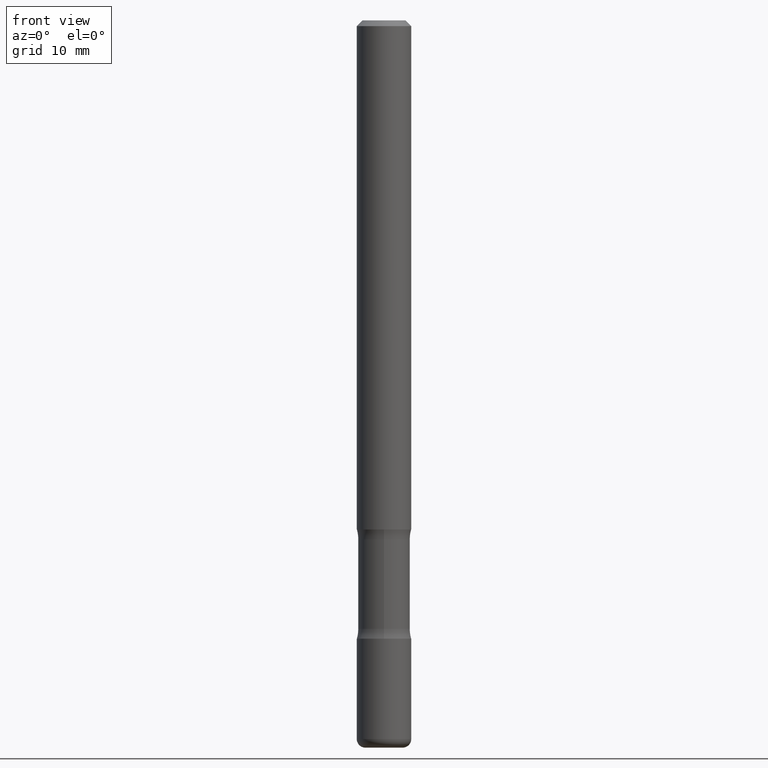
[diagram: clean part render]
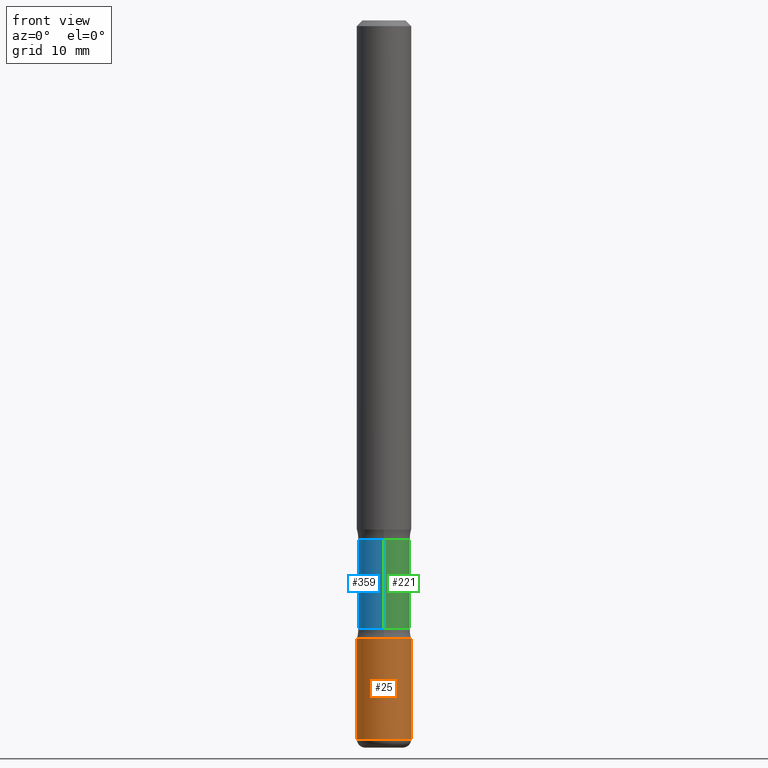
[diagram: same view with three faces highlighted in distinct colors, each labeled with its STEP entity id]
A machine part, front view with three faces highlighted in distinct colors.
Their STEP definitions:

[orange] entity #25 — the highlighted cylindrical surface (edge-blend (fillet) strip) has radius 2.3813 mm, axis along (-0, 0, 1).
#25 = ADVANCED_FACE ( 'NONE', ( #488 ), #408, .T. ) ;
#27 = VERTEX_POINT ( 'NONE', #139 ) ;
#33 = CARTESIAN_POINT ( 'NONE',  ( 0.09374999999999994449, -9.278611657975658288E-15, -2.470000000000000639 ) ) ;
#44 = VECTOR ( 'NONE', #559, 39.37007874015748143 ) ;
#66 = CARTESIAN_POINT ( 'NONE',  ( -0.09375000000000005551, 6.661338147750943187E-16, -4.611501647113976798E-30 ) ) ;
#82 = LINE ( 'NONE', #439, #44 ) ;
#102 = ORIENTED_EDGE ( 'NONE', *, *, #148, .T. ) ;
#124 = CARTESIAN_POINT ( 'NONE',  ( -0.09374999999999994449, -7.957825092167479227E-15, -2.470000000000000639 ) ) ;
#129 = CIRCLE ( 'NONE', #468, 0.09375000000000002776 ) ;
#139 = CARTESIAN_POINT ( 'NONE',  ( 0.09375000000000002776, -8.074050596074771916E-15, -2.125000000000000000 ) ) ;
#148 = EDGE_CURVE ( 'NONE', #518, #368, #303, .T. ) ;
#208 = ORIENTED_EDGE ( 'NONE', *, *, #429, .F. ) ;
#270 = VERTEX_POINT ( 'NONE', #282 ) ;
#278 = EDGE_CURVE ( 'NONE', #270, #27, #129, .T. ) ;
#282 = CARTESIAN_POINT ( 'NONE',  ( -0.09375000000000002776, -7.355544561217034463E-15, -2.125000000000000000 ) ) ;
#300 = DIRECTION ( 'NONE',  ( -2.445468806185136597E-29, 3.491481338843145583E-15, 1.000000000000000000 ) ) ;
#303 = CIRCLE ( 'NONE', #355, 0.09375000000000009714 ) ;
#324 = DIRECTION ( 'NONE',  ( -2.445468806185136597E-29, 3.491481338843145583E-15, 1.000000000000000000 ) ) ;
#325 = ORIENTED_EDGE ( 'NONE', *, *, #472, .T. ) ;
#330 = ORIENTED_EDGE ( 'NONE', *, *, #278, .F. ) ;
#332 = DIRECTION ( 'NONE',  ( 1.000000000000000000, -6.982962677686270655E-15, 0.000000000000000000 ) ) ;
#347 = CARTESIAN_POINT ( 'NONE',  ( 0.000000000000000000, 0.000000000000000000, 0.000000000000000000 ) ) ;
#355 = AXIS2_PLACEMENT_3D ( 'NONE', #414, #324, #450 ) ;
#368 = VERTEX_POINT ( 'NONE', #33 ) ;
#391 = DIRECTION ( 'NONE',  ( -2.445468806185136877E-29, 3.491481338843145188E-15, 1.000000000000000000 ) ) ;
#408 = CYLINDRICAL_SURFACE ( 'NONE', #481, 0.09375000000000005551 ) ;
#414 = CARTESIAN_POINT ( 'NONE',  ( 6.040307951277289098E-29, -8.623958906942573151E-15, -2.470000000000000639 ) ) ;
#429 = EDGE_CURVE ( 'NONE', #518, #270, #463, .T. ) ;
#439 = CARTESIAN_POINT ( 'NONE',  ( 0.09375000000000005551, -6.546527510330878985E-16, 4.571415727308692608E-30 ) ) ;
#441 = DIRECTION ( 'NONE',  ( 1.000000000000000000, -6.982962677686266711E-15, 4.876176775795935793E-29 ) ) ;
#450 = DIRECTION ( 'NONE',  ( 1.000000000000000000, -6.982962677686265922E-15, 0.000000000000000000 ) ) ;
#463 = LINE ( 'NONE', #66, #469 ) ;
#468 = AXIS2_PLACEMENT_3D ( 'NONE', #553, #473, #332 ) ;
#469 = VECTOR ( 'NONE', #391, 39.37007874015748143 ) ;
#472 = EDGE_CURVE ( 'NONE', #368, #27, #82, .T. ) ;
#473 = DIRECTION ( 'NONE',  ( -2.445468806185136597E-29, 3.491481338843145583E-15, 1.000000000000000000 ) ) ;
#481 = AXIS2_PLACEMENT_3D ( 'NONE', #347, #300, #441 ) ;
#488 = FACE_OUTER_BOUND ( 'NONE', #489, .T. ) ;
#489 = EDGE_LOOP ( 'NONE', ( #208, #102, #325, #330 ) ) ;
#518 = VERTEX_POINT ( 'NONE', #124 ) ;
#553 = CARTESIAN_POINT ( 'NONE',  ( 5.196621213143415268E-29, -7.419397845041685201E-15, -2.125000000000000000 ) ) ;
#559 = DIRECTION ( 'NONE',  ( -2.445468806185136877E-29, 3.491481338843145188E-15, 1.000000000000000000 ) ) ;

[blue] entity #359 — the highlighted cylindrical surface (edge-blend (fillet) strip) has radius 2.2622 mm, axis along (0, -0, -1).
#3 = AXIS2_PLACEMENT_3D ( 'NONE', #190, #428, #503 ) ;
#19 = VERTEX_POINT ( 'NONE', #311 ) ;
#30 = DIRECTION ( 'NONE',  ( 6.982962677686265133E-15, 1.000000000000000000, -3.067338098149349877E-15 ) ) ;
#40 = CARTESIAN_POINT ( 'NONE',  ( -6.110131029264649859E-16, -0.08906250000000860700, -2.499999999999999556 ) ) ;
#41 = DIRECTION ( 'NONE',  ( 2.553476385947133355E-29, -3.336808337214295667E-15, -1.000000000000000000 ) ) ;
#51 = ORIENTED_EDGE ( 'NONE', *, *, #423, .T. ) ;
#84 = EDGE_LOOP ( 'NONE', ( #528, #539, #51, #233 ) ) ;
#115 = CARTESIAN_POINT ( 'NONE',  ( 6.219201134814940684E-16, 0.08906249999999125977, -2.500000000000000444 ) ) ;
#151 = CARTESIAN_POINT ( 'NONE',  ( -6.270923951087521301E-16, -0.08906250000000723310, -2.091089789977795377 ) ) ;
#166 = CIRCLE ( 'NONE', #344, 0.08906249999999993339 ) ;
#190 = CARTESIAN_POINT ( 'NONE',  ( 6.154174857873591467E-29, -8.670700971497045879E-15, -2.500000000000000000 ) ) ;
#233 = ORIENTED_EDGE ( 'NONE', *, *, #499, .F. ) ;
#252 = CARTESIAN_POINT ( 'NONE',  ( 6.219201134814759246E-16, 0.08906249999999366063, -1.783910210022204845 ) ) ;
#283 = VERTEX_POINT ( 'NONE', #151 ) ;
#288 = CIRCLE ( 'NONE', #369, 0.08906249999999994726 ) ;
#292 = DIRECTION ( 'NONE',  ( 2.553476385947133355E-29, -3.336808337214295667E-15, -1.000000000000000000 ) ) ;
#311 = CARTESIAN_POINT ( 'NONE',  ( -6.270923951087611034E-16, -0.08906250000000623390, -1.783910210022204401 ) ) ;
#317 = EDGE_CURVE ( 'NONE', #19, #480, #288, .T. ) ;
#326 = CARTESIAN_POINT ( 'NONE',  ( 6.219201134814836160E-16, 0.08906249999999261979, -2.091089789977795821 ) ) ;
#328 = FACE_OUTER_BOUND ( 'NONE', #84, .T. ) ;
#344 = AXIS2_PLACEMENT_3D ( 'NONE', #511, #41, #513 ) ;
#359 = ADVANCED_FACE ( 'NONE', ( #328 ), #500, .T. ) ;
#369 = AXIS2_PLACEMENT_3D ( 'NONE', #551, #425, #30 ) ;
#398 = VECTOR ( 'NONE', #292, 39.37007874015748143 ) ;
#400 = VERTEX_POINT ( 'NONE', #326 ) ;
#423 = EDGE_CURVE ( 'NONE', #480, #400, #509, .T. ) ;
#425 = DIRECTION ( 'NONE',  ( 2.553476385947133355E-29, -3.336808337214295667E-15, -1.000000000000000000 ) ) ;
#426 = VECTOR ( 'NONE', #479, 39.37007874015748143 ) ;
#428 = DIRECTION ( 'NONE',  ( 2.553476385947133355E-29, -3.336808337214295667E-15, -1.000000000000000000 ) ) ;
#447 = EDGE_CURVE ( 'NONE', #19, #283, #556, .T. ) ;
#479 = DIRECTION ( 'NONE',  ( 2.553476385947133355E-29, -3.336808337214295667E-15, -1.000000000000000000 ) ) ;
#480 = VERTEX_POINT ( 'NONE', #252 ) ;
#499 = EDGE_CURVE ( 'NONE', #283, #400, #166, .T. ) ;
#500 = CYLINDRICAL_SURFACE ( 'NONE', #3, 0.08906249999999993339 ) ;
#503 = DIRECTION ( 'NONE',  ( 6.982962677686265133E-15, 1.000000000000000000, -6.134676196298701332E-15 ) ) ;
#509 = LINE ( 'NONE', #115, #398 ) ;
#511 = CARTESIAN_POINT ( 'NONE',  ( 5.110032292609207884E-29, -7.306245973522905960E-15, -2.091089789977795821 ) ) ;
#513 = DIRECTION ( 'NONE',  ( 6.982962677686265133E-15, 1.000000000000000000, -3.067338098149350666E-15 ) ) ;
#528 = ORIENTED_EDGE ( 'NONE', *, *, #447, .F. ) ;
#539 = ORIENTED_EDGE ( 'NONE', *, *, #317, .T. ) ;
#551 = CARTESIAN_POINT ( 'NONE',  ( 4.325656488947447574E-29, -6.281246590105103764E-15, -1.783910210022204623 ) ) ;
#556 = LINE ( 'NONE', #40, #426 ) ;

[green] entity #221 — the highlighted cylindrical surface (edge-blend (fillet) strip) has radius 2.2622 mm, axis along (0, -0, -1).
#19 = VERTEX_POINT ( 'NONE', #311 ) ;
#26 = AXIS2_PLACEMENT_3D ( 'NONE', #143, #457, #138 ) ;
#36 = CARTESIAN_POINT ( 'NONE',  ( 5.110032292609207884E-29, -7.306245973522905960E-15, -2.091089789977795821 ) ) ;
#40 = CARTESIAN_POINT ( 'NONE',  ( -6.110131029264649859E-16, -0.08906250000000860700, -2.499999999999999556 ) ) ;
#115 = CARTESIAN_POINT ( 'NONE',  ( 6.219201134814940684E-16, 0.08906249999999125977, -2.500000000000000444 ) ) ;
#133 = EDGE_LOOP ( 'NONE', ( #171, #404, #174, #393 ) ) ;
#138 = DIRECTION ( 'NONE',  ( 6.982962677686265133E-15, 1.000000000000000000, -6.134676196298701332E-15 ) ) ;
#143 = CARTESIAN_POINT ( 'NONE',  ( 6.154174857873591467E-29, -8.670700971497045879E-15, -2.500000000000000000 ) ) ;
#151 = CARTESIAN_POINT ( 'NONE',  ( -6.270923951087521301E-16, -0.08906250000000723310, -2.091089789977795377 ) ) ;
#162 = DIRECTION ( 'NONE',  ( 2.553476385947133355E-29, -3.336808337214295667E-15, -1.000000000000000000 ) ) ;
#171 = ORIENTED_EDGE ( 'NONE', *, *, #214, .T. ) ;
#174 = ORIENTED_EDGE ( 'NONE', *, *, #517, .F. ) ;
#179 = DIRECTION ( 'NONE',  ( 6.982962677686265133E-15, 1.000000000000000000, -3.067338098149349877E-15 ) ) ;
#207 = DIRECTION ( 'NONE',  ( 6.982962677686265133E-15, 1.000000000000000000, -3.067338098149350666E-15 ) ) ;
#214 = EDGE_CURVE ( 'NONE', #480, #19, #506, .T. ) ;
#221 = ADVANCED_FACE ( 'NONE', ( #495 ), #238, .T. ) ;
#238 = CYLINDRICAL_SURFACE ( 'NONE', #26, 0.08906249999999993339 ) ;
#252 = CARTESIAN_POINT ( 'NONE',  ( 6.219201134814759246E-16, 0.08906249999999366063, -1.783910210022204845 ) ) ;
#283 = VERTEX_POINT ( 'NONE', #151 ) ;
#292 = DIRECTION ( 'NONE',  ( 2.553476385947133355E-29, -3.336808337214295667E-15, -1.000000000000000000 ) ) ;
#311 = CARTESIAN_POINT ( 'NONE',  ( -6.270923951087611034E-16, -0.08906250000000623390, -1.783910210022204401 ) ) ;
#326 = CARTESIAN_POINT ( 'NONE',  ( 6.219201134814836160E-16, 0.08906249999999261979, -2.091089789977795821 ) ) ;
#372 = AXIS2_PLACEMENT_3D ( 'NONE', #532, #498, #179 ) ;
#381 = AXIS2_PLACEMENT_3D ( 'NONE', #36, #162, #207 ) ;
#393 = ORIENTED_EDGE ( 'NONE', *, *, #423, .F. ) ;
#398 = VECTOR ( 'NONE', #292, 39.37007874015748143 ) ;
#400 = VERTEX_POINT ( 'NONE', #326 ) ;
#404 = ORIENTED_EDGE ( 'NONE', *, *, #447, .T. ) ;
#407 = CIRCLE ( 'NONE', #381, 0.08906249999999993339 ) ;
#423 = EDGE_CURVE ( 'NONE', #480, #400, #509, .T. ) ;
#426 = VECTOR ( 'NONE', #479, 39.37007874015748143 ) ;
#447 = EDGE_CURVE ( 'NONE', #19, #283, #556, .T. ) ;
#457 = DIRECTION ( 'NONE',  ( 2.553476385947133355E-29, -3.336808337214295667E-15, -1.000000000000000000 ) ) ;
#479 = DIRECTION ( 'NONE',  ( 2.553476385947133355E-29, -3.336808337214295667E-15, -1.000000000000000000 ) ) ;
#480 = VERTEX_POINT ( 'NONE', #252 ) ;
#495 = FACE_OUTER_BOUND ( 'NONE', #133, .T. ) ;
#498 = DIRECTION ( 'NONE',  ( 2.553476385947133355E-29, -3.336808337214295667E-15, -1.000000000000000000 ) ) ;
#506 = CIRCLE ( 'NONE', #372, 0.08906249999999994726 ) ;
#509 = LINE ( 'NONE', #115, #398 ) ;
#517 = EDGE_CURVE ( 'NONE', #400, #283, #407, .T. ) ;
#532 = CARTESIAN_POINT ( 'NONE',  ( 4.325656488947447574E-29, -6.281246590105103764E-15, -1.783910210022204623 ) ) ;
#556 = LINE ( 'NONE', #40, #426 ) ;